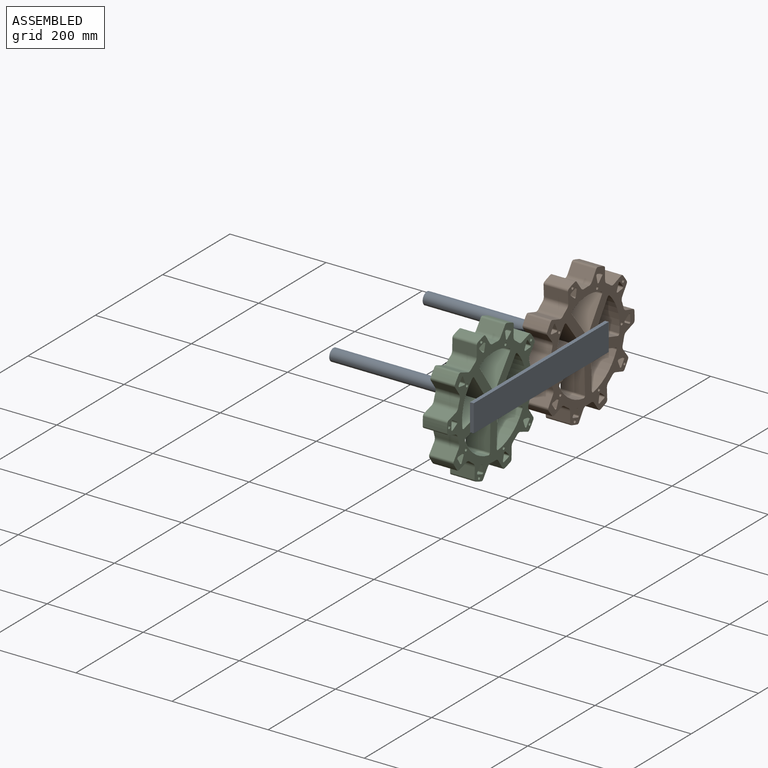
[diagram: assembled view]
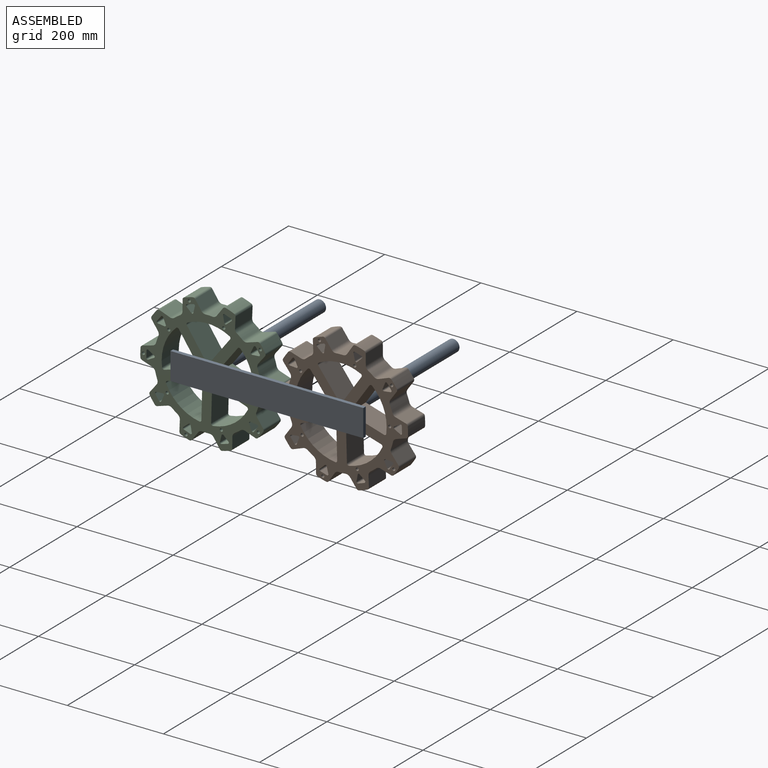
[diagram: assembled view, second angle]
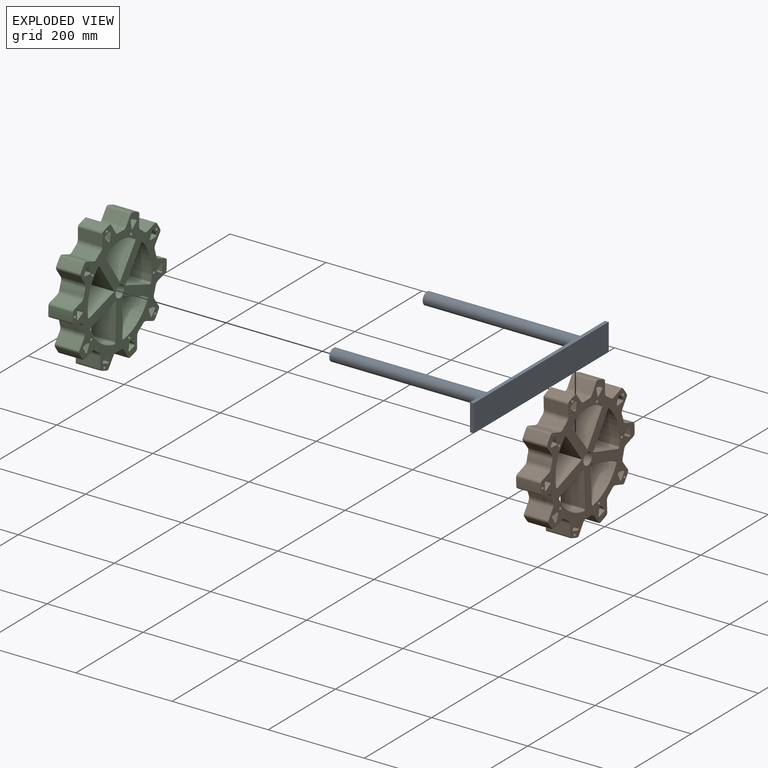
[diagram: exploded view]
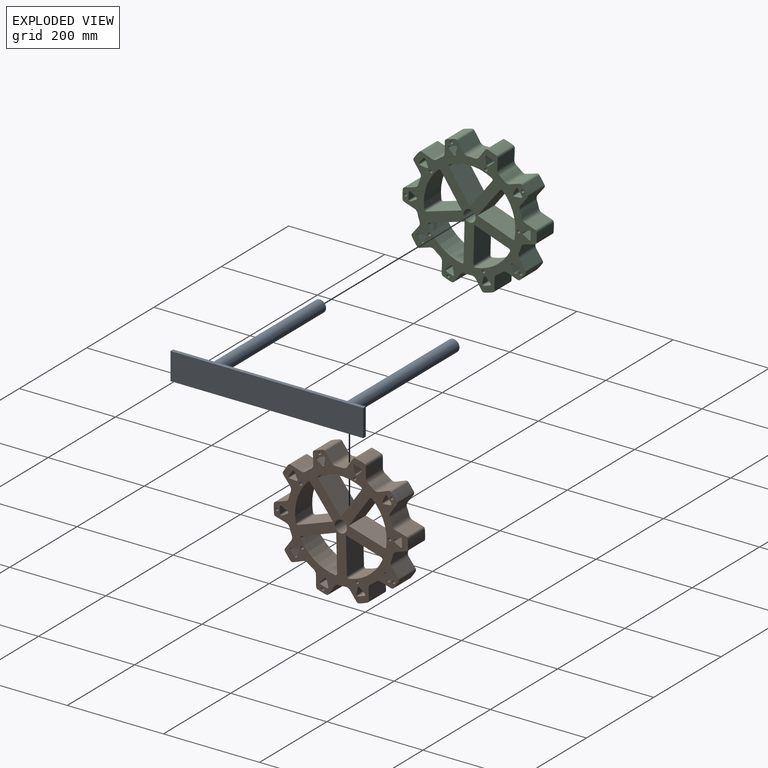
[diagram: exploded view, second angle]
ASSEMBLY  parts=3 mates=2
PART A: 10 faces, bbox 401x341.9x56.7 mm
  f0: plane 401.04x7.62mm, normal (0,0,1), area 3055.9mm2, adj f1,f3,f4,f5
  f1: plane 56.66x7.62mm, normal (-1,0,0), area 431.8mm2, adj f0,f2,f4,f5
  f2: plane 401.04x7.62mm, normal (0,0,-1), area 3055.9mm2, adj f1,f3,f4,f5
  f3: plane 56.66x7.62mm, normal (1,0,0), area 431.8mm2, adj f0,f2,f4,f5
  f4: plane 401.04x56.66mm, normal (0,-1,0), area 21709.6mm2, adj f0,f1,f2,f3,f6,f8
  f5: plane 401.04x56.66mm, normal (0,1,0), area 22723.1mm2, adj f0,f1,f2,f3
  f6: cylinder r=12.7mm len=334.26mm, axis (0,1,0), area 26673.1mm2, adj f4,f7
  f7: plane 25.4x25.4mm, normal (0,-1,0), area 506.7mm2, adj f6
  f8: cylinder r=12.7mm len=334.26mm, axis (0,1,0), area 26673.1mm2, adj f4,f9
  f9: plane 25.4x25.4mm, normal (0,-1,0), area 506.7mm2, adj f8
PART B: 178 faces, bbox 279.4x271.1x50.8 mm
  f0: plane 76.4x50.8mm, normal (1,0,0), area 3881.4mm2, adj f1,f18,f19,f57
  f1: cylinder r=3.81mm len=50.8mm, axis (0,0,-1), area 333.7mm2, adj f0,f2,f18,f19
  f2: cylinder r=95.25mm len=70.5mm, axis (0,0,-1), area 4597.7mm2, adj f1,f18,f19,f58
  f3: cylinder r=111.12mm len=50.8mm, axis (0,0,-1), area 723.9mm2, adj f4,f18,f19,f59
  f4: cylinder r=10.16mm len=50.8mm, axis (0,0,-1), area 526.7mm2, adj f3,f5,f18,f19
  f5: plane 50.8x22.32mm, normal (1,-0.01,0), area 1133.8mm2, adj f4,f6,f18,f19
  f6: cylinder r=5.08mm len=50.8mm, axis (0,0,-1), area 310.9mm2, adj f5,f7,f18,f19
  f7: cylinder r=139.7mm len=50.8mm, axis (0,0,-1), area 934.1mm2, adj f6,f8,f18,f19
  f8: cylinder r=5.08mm len=50.8mm, axis (0,0,-1), area 310.9mm2, adj f7,f9,f18,f19
  f9: plane 50.8x18.24mm, normal (-0.82,0.58,0), area 1133.8mm2, adj f8,f10,f18,f19
  f10: cylinder r=10.16mm len=50.8mm, axis (0,0,-1), area 526.7mm2, adj f9,f11,f18,f19
  f11: cylinder r=111.12mm len=50.8mm, axis (0,0,-1), area 723.9mm2, adj f10,f18,f19,f30
  f12: plane 50.8x13.37mm, normal (-0.31,-0.95,0), area 714.3mm2, adj f13,f17,f18,f19
  f13: cylinder r=2.54mm len=50.8mm, axis (0,0,-1), area 270.2mm2, adj f12,f14,f18,f19
  f14: plane 50.8x10.45mm, normal (-0.67,0.74,0), area 714.3mm2, adj f13,f15,f18,f19
  f15: cylinder r=2.54mm len=50.8mm, axis (0,0,-1), area 270.2mm2, adj f14,f16,f18,f19
  f16: plane 50.8x13.75mm, normal (0.98,0.21,0), area 714.3mm2, adj f15,f17,f18,f19
  f17: cylinder r=2.54mm len=50.8mm, axis (0,0,-1), area 270.2mm2, adj f12,f16,f18,f19
  f18: plane 279.4x271.14mm, normal (0,0,1), area 26318.8mm2, adj f0,f1,f2,f3,f4,f5,f6,f7
  f19: plane 279.4x271.14mm, normal (0,0,-1), area 26318.8mm2, adj f0,f1,f2,f3,f4,f5,f6,f7
  f20: plane 76.4x50.8mm, normal (-1,0,0), area 3881.4mm2, adj f18,f19,f21,f144
  f21: cylinder r=3.81mm len=50.8mm, axis (0,0,-1), area 333.7mm2, adj f18,f19,f20,f22
  f22: cylinder r=95.25mm len=70.5mm, axis (0,0,-1), area 4597.7mm2, adj f18,f19,f21,f145
  f23: cylinder r=111.12mm len=50.8mm, axis (0,0,-1), area 723.9mm2, adj f18,f19,f24,f146
  f24: cylinder r=10.16mm len=50.8mm, axis (0,0,-1), area 526.7mm2, adj f18,f19,f23,f25
  f25: plane 50.8x22.32mm, normal (-1,-0.01,0), area 1133.8mm2, adj f18,f19,f24,f26
  f26: cylinder r=5.08mm len=50.8mm, axis (0,0,-1), area 310.9mm2, adj f18,f19,f25,f27
  f27: cylinder r=139.7mm len=50.8mm, axis (0,0,-1), area 934.1mm2, adj f18,f19,f26,f28
  f28: cylinder r=5.08mm len=50.8mm, axis (0,0,-1), area 310.9mm2, adj f18,f19,f27,f29
  f29: plane 50.8x18.24mm, normal (0.82,0.58,0), area 1133.8mm2, adj f18,f19,f28,f30
  f30: cylinder r=10.16mm len=50.8mm, axis (0,0,-1), area 526.7mm2, adj f11,f18,f19,f29
  f31: plane 50.8x13.37mm, normal (0.31,-0.95,0), area 714.3mm2, adj f18,f19,f32,f36
  f32: cylinder r=2.54mm len=50.8mm, axis (0,0,-1), area 270.2mm2, adj f18,f19,f31,f33
  f33: plane 50.8x10.45mm, normal (0.67,0.74,0), area 714.3mm2, adj f18,f19,f32,f34
  f34: cylinder r=2.54mm len=50.8mm, axis (0,0,-1), area 270.2mm2, adj f18,f19,f33,f35
  f35: plane 50.8x13.75mm, normal (-0.98,0.21,0), area 714.3mm2, adj f18,f19,f34,f36
  f36: cylinder r=2.54mm len=50.8mm, axis (0,0,-1), area 270.2mm2, adj f18,f19,f31,f35
  f37: cylinder r=3.17mm len=50.8mm, axis (0,0,1), area 1013.4mm2, adj f18,f19
  f38: cylinder r=3.17mm len=50.8mm, axis (0,0,1), area 1013.4mm2, adj f18,f19
  f39: plane 72.67x50.8mm, normal (0.31,-0.95,0), area 3881.4mm2, adj f18,f19,f40,f92
  f40: cylinder r=3.81mm len=50.8mm, axis (0,0,-1), area 333.7mm2, adj f18,f19,f39,f41
  f41: cylinder r=95.25mm len=82.88mm, axis (0,0,-1), area 4597.7mm2, adj f18,f19,f40,f93
  f42: cylinder r=111.12mm len=50.8mm, axis (0,0,-1), area 723.9mm2, adj f18,f19,f43,f94
  f43: cylinder r=10.16mm len=50.8mm, axis (0,0,-1), area 526.7mm2, adj f18,f19,f42,f44
  f44: plane 50.8x21.32mm, normal (0.3,-0.96,0), area 1133.8mm2, adj f18,f19,f43,f45
  f45: cylinder r=5.08mm len=50.8mm, axis (0,0,-1), area 310.9mm2, adj f18,f19,f44,f46
  f46: cylinder r=139.7mm len=50.8mm, axis (0,0,-1), area 934.1mm2, adj f18,f19,f45,f47
  f47: cylinder r=5.08mm len=50.8mm, axis (0,0,-1), area 310.9mm2, adj f18,f19,f46,f48
  f48: plane 50.8x21.32mm, normal (0.3,0.96,0), area 1133.8mm2, adj f18,f19,f47,f49
  f49: cylinder r=10.16mm len=50.8mm, axis (0,0,-1), area 526.7mm2, adj f18,f19,f48,f50
  f50: cylinder r=111.12mm len=50.8mm, axis (0,0,-1), area 723.9mm2, adj f18,f19,f49,f65
  f51: plane 50.8x14.06mm, normal (-1,0,0), area 714.3mm2, adj f18,f19,f52,f56
  f52: cylinder r=2.54mm len=50.8mm, axis (0,0,-1), area 270.2mm2, adj f18,f19,f51,f53
  f53: plane 50.8x12.18mm, normal (0.5,0.87,0), area 714.3mm2, adj f18,f19,f52,f54
  f54: cylinder r=2.54mm len=50.8mm, axis (0,0,-1), area 270.2mm2, adj f18,f19,f53,f55
  f55: plane 50.8x12.18mm, normal (0.5,-0.87,0), area 714.3mm2, adj f18,f19,f54,f56
  f56: cylinder r=2.54mm len=50.8mm, axis (0,0,-1), area 270.2mm2, adj f18,f19,f51,f55
  f57: plane 72.67x50.8mm, normal (-0.31,0.95,0), area 3881.4mm2, adj f0,f18,f19,f58
  f58: cylinder r=3.81mm len=50.8mm, axis (0,0,-1), area 333.7mm2, adj f2,f18,f19,f57
  f59: cylinder r=10.16mm len=50.8mm, axis (0,0,-1), area 526.7mm2, adj f3,f18,f19,f60
  f60: plane 50.8x21.13mm, normal (-0.32,0.95,0), area 1133.8mm2, adj f18,f19,f59,f61
  f61: cylinder r=5.08mm len=50.8mm, axis (0,0,-1), area 310.9mm2, adj f18,f19,f60,f62
  f62: cylinder r=139.7mm len=50.8mm, axis (0,0,-1), area 934.1mm2, adj f18,f19,f61,f63
  f63: cylinder r=5.08mm len=50.8mm, axis (0,0,-1), area 310.9mm2, adj f18,f19,f62,f64
  f64: plane 50.8x17.87mm, normal (0.8,-0.6,0), area 1133.8mm2, adj f18,f19,f63,f65
  f65: cylinder r=10.16mm len=50.8mm, axis (0,0,-1), area 526.7mm2, adj f18,f19,f50,f64
  f66: plane 50.8x11.38mm, normal (-0.81,-0.59,0), area 714.3mm2, adj f18,f19,f67,f71
  f67: cylinder r=2.54mm len=50.8mm, axis (0,0,-1), area 270.2mm2, adj f18,f19,f66,f68
  f68: plane 50.8x12.85mm, normal (0.91,-0.41,0), area 714.3mm2, adj f18,f19,f67,f69
  f69: cylinder r=2.54mm len=50.8mm, axis (0,0,-1), area 270.2mm2, adj f18,f19,f68,f70
  f70: plane 50.8x13.98mm, normal (-0.1,0.99,0), area 714.3mm2, adj f18,f19,f69,f71
  f71: cylinder r=2.54mm len=50.8mm, axis (0,0,-1), area 270.2mm2, adj f18,f19,f66,f70
  f72: cylinder r=3.17mm len=50.8mm, axis (0,0,1), area 1013.4mm2, adj f18,f19
  f73: cylinder r=3.17mm len=50.8mm, axis (0,0,1), area 1013.4mm2, adj f18,f19
  f74: plane 61.81x50.8mm, normal (-0.81,-0.59,0), area 3881.4mm2, adj f18,f19,f75,f127
  f75: cylinder r=3.81mm len=50.8mm, axis (0,0,-1), area 333.7mm2, adj f18,f19,f74,f76
  f76: cylinder r=95.25mm len=87.14mm, axis (0,0,-1), area 4597.7mm2, adj f18,f19,f75,f128
  f77: cylinder r=111.12mm len=50.8mm, axis (0,0,-1), area 723.9mm2, adj f18,f19,f78,f129
  f78: cylinder r=10.16mm len=50.8mm, axis (0,0,-1), area 526.7mm2, adj f18,f19,f77,f79
  f79: plane 50.8x18.24mm, normal (-0.82,-0.58,0), area 1133.8mm2, adj f18,f19,f78,f80
  f80: cylinder r=5.08mm len=50.8mm, axis (0,0,-1), area 310.9mm2, adj f18,f19,f79,f81
  f81: cylinder r=139.7mm len=50.8mm, axis (0,0,-1), area 934.1mm2, adj f18,f19,f80,f82
  f82: cylinder r=5.08mm len=50.8mm, axis (0,0,-1), area 310.9mm2, adj f18,f19,f81,f83
  f83: plane 50.8x22.32mm, normal (1,0.01,0), area 1133.8mm2, adj f18,f19,f82,f84
  f84: cylinder r=10.16mm len=50.8mm, axis (0,0,-1), area 526.7mm2, adj f18,f19,f83,f85
  f85: cylinder r=111.12mm len=50.8mm, axis (0,0,-1), area 723.9mm2, adj f18,f19,f84,f100
  f86: plane 50.8x13.37mm, normal (-0.31,0.95,0), area 714.3mm2, adj f18,f19,f87,f91
  f87: cylinder r=2.54mm len=50.8mm, axis (0,0,-1), area 270.2mm2, adj f18,f19,f86,f88
  f88: plane 50.8x13.75mm, normal (0.98,-0.21,0), area 714.3mm2, adj f18,f19,f87,f89
  f89: cylinder r=2.54mm len=50.8mm, axis (0,0,-1), area 270.2mm2, adj f18,f19,f88,f90
  f90: plane 50.8x10.45mm, normal (-0.67,-0.74,0), area 714.3mm2, adj f18,f19,f89,f91
  f91: cylinder r=2.54mm len=50.8mm, axis (0,0,-1), area 270.2mm2, adj f18,f19,f86,f90
  f92: plane 61.81x50.8mm, normal (0.81,0.59,0), area 3881.4mm2, adj f18,f19,f39,f93
  f93: cylinder r=3.81mm len=50.8mm, axis (0,0,-1), area 333.7mm2, adj f18,f19,f41,f92
  f94: cylinder r=10.16mm len=50.8mm, axis (0,0,-1), area 526.7mm2, adj f18,f19,f42,f95
  f95: plane 50.8x17.87mm, normal (0.8,0.6,0), area 1133.8mm2, adj f18,f19,f94,f96
  f96: cylinder r=5.08mm len=50.8mm, axis (0,0,-1), area 310.9mm2, adj f18,f19,f95,f97
  f97: cylinder r=139.7mm len=50.8mm, axis (0,0,-1), area 934.1mm2, adj f18,f19,f96,f98
  f98: cylinder r=5.08mm len=50.8mm, axis (0,0,-1), area 310.9mm2, adj f18,f19,f97,f99
  f99: plane 50.8x21.13mm, normal (-0.32,-0.95,0), area 1133.8mm2, adj f18,f19,f98,f100
  f100: cylinder r=10.16mm len=50.8mm, axis (0,0,-1), area 526.7mm2, adj f18,f19,f85,f99
  f101: plane 50.8x11.38mm, normal (-0.81,0.59,0), area 714.3mm2, adj f18,f19,f102,f106
  f102: cylinder r=2.54mm len=50.8mm, axis (0,0,-1), area 270.2mm2, adj f18,f19,f101,f103
  f103: plane 50.8x13.98mm, normal (-0.1,-0.99,0), area 714.3mm2, adj f18,f19,f102,f104
  f104: cylinder r=2.54mm len=50.8mm, axis (0,0,-1), area 270.2mm2, adj f18,f19,f103,f105
  f105: plane 50.8x12.85mm, normal (0.91,0.41,0), area 714.3mm2, adj f18,f19,f104,f106
  f106: cylinder r=2.54mm len=50.8mm, axis (0,0,-1), area 270.2mm2, adj f18,f19,f101,f105
  f107: cylinder r=3.17mm len=50.8mm, axis (0,0,1), area 1013.4mm2, adj f18,f19
  f108: cylinder r=3.17mm len=50.8mm, axis (0,0,1), area 1013.4mm2, adj f18,f19
  f109: plane 61.81x50.8mm, normal (-0.81,0.59,0), area 3881.4mm2, adj f18,f19,f110,f160
  f110: cylinder r=3.81mm len=50.8mm, axis (0,0,-1), area 333.7mm2, adj f18,f19,f109,f111
  f111: cylinder r=95.25mm len=82.88mm, axis (0,0,-1), area 4597.7mm2, adj f18,f19,f110,f161
  f112: cylinder r=111.12mm len=50.8mm, axis (0,0,-1), area 723.9mm2, adj f18,f19,f113,f162
  f113: cylinder r=10.16mm len=50.8mm, axis (0,0,-1), area 526.7mm2, adj f18,f19,f112,f114
  f114: plane 50.8x17.87mm, normal (-0.8,0.6,0), area 1133.8mm2, adj f18,f19,f113,f115
  f115: cylinder r=5.08mm len=50.8mm, axis (0,0,-1), area 310.9mm2, adj f18,f19,f114,f116
  f116: cylinder r=139.7mm len=50.8mm, axis (0,0,-1), area 934.1mm2, adj f18,f19,f115,f117
  f117: cylinder r=5.08mm len=50.8mm, axis (0,0,-1), area 310.9mm2, adj f18,f19,f116,f118
  f118: plane 50.8x21.13mm, normal (0.32,-0.95,0), area 1133.8mm2, adj f18,f19,f117,f119
  f119: cylinder r=10.16mm len=50.8mm, axis (0,0,-1), area 526.7mm2, adj f18,f19,f118,f120
  f120: cylinder r=111.12mm len=50.8mm, axis (0,0,-1), area 723.9mm2, adj f18,f19,f119,f135
  f121: plane 50.8x11.38mm, normal (0.81,0.59,0), area 714.3mm2, adj f18,f19,f122,f126
  f122: cylinder r=2.54mm len=50.8mm, axis (0,0,-1), area 270.2mm2, adj f18,f19,f121,f123
  f123: plane 50.8x13.98mm, normal (0.1,-0.99,0), area 714.3mm2, adj f18,f19,f122,f124
  f124: cylinder r=2.54mm len=50.8mm, axis (0,0,-1), area 270.2mm2, adj f18,f19,f123,f125
  f125: plane 50.8x12.85mm, normal (-0.91,0.41,0), area 714.3mm2, adj f18,f19,f124,f126
  f126: cylinder r=2.54mm len=50.8mm, axis (0,0,-1), area 270.2mm2, adj f18,f19,f121,f125
  f127: plane 61.81x50.8mm, normal (0.81,-0.59,0), area 3881.4mm2, adj f18,f19,f74,f128
  f128: cylinder r=3.81mm len=50.8mm, axis (0,0,-1), area 333.7mm2, adj f18,f19,f76,f127
  f129: cylinder r=10.16mm len=50.8mm, axis (0,0,-1), area 526.7mm2, adj f18,f19,f77,f130
  f130: plane 50.8x18.24mm, normal (0.82,-0.58,0), area 1133.8mm2, adj f18,f19,f129,f131
  f131: cylinder r=5.08mm len=50.8mm, axis (0,0,-1), area 310.9mm2, adj f18,f19,f130,f132
  f132: cylinder r=139.7mm len=50.8mm, axis (0,0,-1), area 934.1mm2, adj f18,f19,f131,f133
  f133: cylinder r=5.08mm len=50.8mm, axis (0,0,-1), area 310.9mm2, adj f18,f19,f132,f134
  f134: plane 50.8x22.32mm, normal (-1,0.01,0), area 1133.8mm2, adj f18,f19,f133,f135
  f135: cylinder r=10.16mm len=50.8mm, axis (0,0,-1), area 526.7mm2, adj f18,f19,f120,f134
  f136: plane 50.8x13.37mm, normal (0.31,0.95,0), area 714.3mm2, adj f18,f19,f137,f141
  f137: cylinder r=2.54mm len=50.8mm, axis (0,0,-1), area 270.2mm2, adj f18,f19,f136,f138
  f138: plane 50.8x13.75mm, normal (-0.98,-0.21,0), area 714.3mm2, adj f18,f19,f137,f139
  f139: cylinder r=2.54mm len=50.8mm, axis (0,0,-1), area 270.2mm2, adj f18,f19,f138,f140
  f140: plane 50.8x10.45mm, normal (0.67,-0.74,0), area 714.3mm2, adj f18,f19,f139,f141
  f141: cylinder r=2.54mm len=50.8mm, axis (0,0,-1), area 270.2mm2, adj f18,f19,f136,f140
  f142: cylinder r=3.17mm len=50.8mm, axis (0,0,1), area 1013.4mm2, adj f18,f19
  f143: cylinder r=3.17mm len=50.8mm, axis (0,0,1), area 1013.4mm2, adj f18,f19
  f144: plane 72.67x50.8mm, normal (0.31,0.95,0), area 3881.4mm2, adj f18,f19,f20,f145
  f145: cylinder r=3.81mm len=50.8mm, axis (0,0,-1), area 333.7mm2, adj f18,f19,f22,f144
  f146: cylinder r=10.16mm len=50.8mm, axis (0,0,-1), area 526.7mm2, adj f18,f19,f23,f147
  f147: plane 50.8x21.13mm, normal (0.32,0.95,0), area 1133.8mm2, adj f18,f19,f146,f148
  f148: cylinder r=5.08mm len=50.8mm, axis (0,0,-1), area 310.9mm2, adj f18,f19,f147,f149
  f149: cylinder r=139.7mm len=50.8mm, axis (0,0,-1), area 934.1mm2, adj f18,f19,f148,f150
  f150: cylinder r=5.08mm len=50.8mm, axis (0,0,-1), area 310.9mm2, adj f18,f19,f149,f151
  f151: plane 50.8x17.87mm, normal (-0.8,-0.6,0), area 1133.8mm2, adj f18,f19,f150,f152
  f152: cylinder r=10.16mm len=50.8mm, axis (0,0,-1), area 526.7mm2, adj f18,f19,f151,f153
  f153: cylinder r=111.12mm len=50.8mm, axis (0,0,-1), area 723.9mm2, adj f18,f19,f152,f168
  f154: plane 50.8x11.38mm, normal (0.81,-0.59,0), area 714.3mm2, adj f18,f19,f155,f159
  f155: cylinder r=2.54mm len=50.8mm, axis (0,0,-1), area 270.2mm2, adj f18,f19,f154,f156
  f156: plane 50.8x12.85mm, normal (-0.91,-0.41,0), area 714.3mm2, adj f18,f19,f155,f157
  f157: cylinder r=2.54mm len=50.8mm, axis (0,0,-1), area 270.2mm2, adj f18,f19,f156,f158
  f158: plane 50.8x13.98mm, normal (0.1,0.99,0), area 714.3mm2, adj f18,f19,f157,f159
  f159: cylinder r=2.54mm len=50.8mm, axis (0,0,-1), area 270.2mm2, adj f18,f19,f154,f158
  f160: plane 72.67x50.8mm, normal (-0.31,-0.95,0), area 3881.4mm2, adj f18,f19,f109,f161
  f161: cylinder r=3.81mm len=50.8mm, axis (0,0,-1), area 333.7mm2, adj f18,f19,f111,f160
  f162: cylinder r=10.16mm len=50.8mm, axis (0,0,-1), area 526.7mm2, adj f18,f19,f112,f163
  f163: plane 50.8x21.32mm, normal (-0.3,-0.96,0), area 1133.8mm2, adj f18,f19,f162,f164
  f164: cylinder r=5.08mm len=50.8mm, axis (0,0,-1), area 310.9mm2, adj f18,f19,f163,f165
  f165: cylinder r=139.7mm len=50.8mm, axis (0,0,-1), area 934.1mm2, adj f18,f19,f164,f166
  f166: cylinder r=5.08mm len=50.8mm, axis (0,0,-1), area 310.9mm2, adj f18,f19,f165,f167
  f167: plane 50.8x21.32mm, normal (-0.3,0.96,0), area 1133.8mm2, adj f18,f19,f166,f168
  f168: cylinder r=10.16mm len=50.8mm, axis (0,0,-1), area 526.7mm2, adj f18,f19,f153,f167
  f169: plane 50.8x14.06mm, normal (1,0,0), area 714.3mm2, adj f18,f19,f170,f174
  f170: cylinder r=2.54mm len=50.8mm, axis (0,0,-1), area 270.2mm2, adj f18,f19,f169,f171
  f171: plane 50.8x12.18mm, normal (-0.5,0.87,0), area 714.3mm2, adj f18,f19,f170,f172
  f172: cylinder r=2.54mm len=50.8mm, axis (0,0,-1), area 270.2mm2, adj f18,f19,f171,f173
  f173: plane 50.8x12.18mm, normal (-0.5,-0.87,0), area 714.3mm2, adj f18,f19,f172,f174
  f174: cylinder r=2.54mm len=50.8mm, axis (0,0,-1), area 270.2mm2, adj f18,f19,f169,f173
  f175: cylinder r=3.17mm len=50.8mm, axis (0,0,1), area 1013.4mm2, adj f18,f19
  f176: cylinder r=3.17mm len=50.8mm, axis (0,0,1), area 1013.4mm2, adj f18,f19
  f177: cylinder r=12.7mm len=50.8mm, axis (0,0,1), area 4053.7mm2, adj f18,f19
PART C: same geometry as B
PLACE A rot(axis=(0,0,-1),90deg) t=(7.62,2.73,1.25)mm
PLACE B rot(axis=(0.67,0.33,0.67),143.6deg) t=(-25.4,149.14,1.25)mm
PLACE C rot(axis=(0.4,0.82,0.4),101.3deg) t=(-25.4,-128.48,1.25)mm
MATE revolute B.f177 <-> A.f6  axis (1,0,0) through (0,149.14,1.25)mm
MATE revolute C.f177 <-> A.f8  axis (1,0,0) through (0,-128.48,1.25)mm
